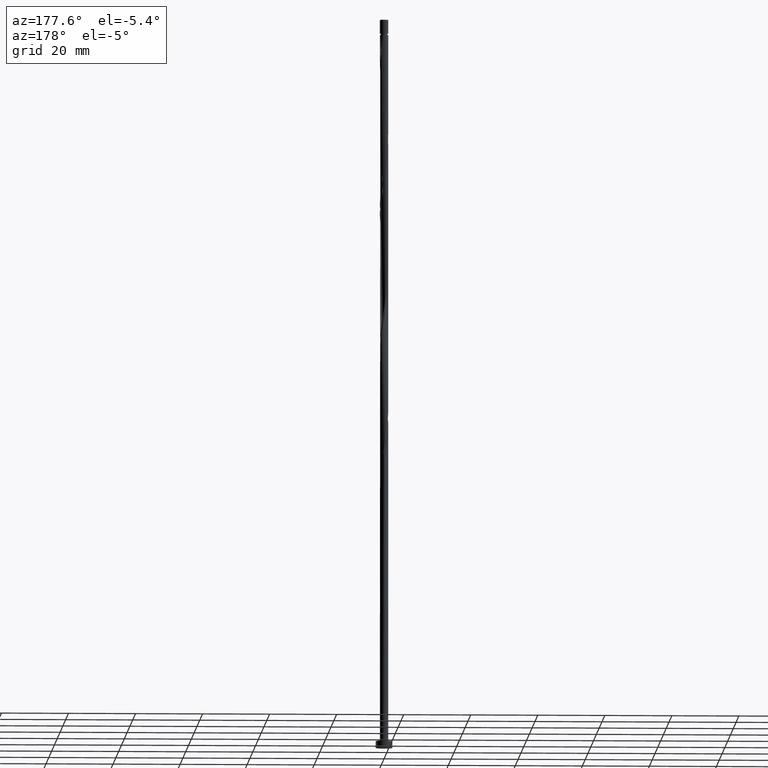
[diagram: clean part render]
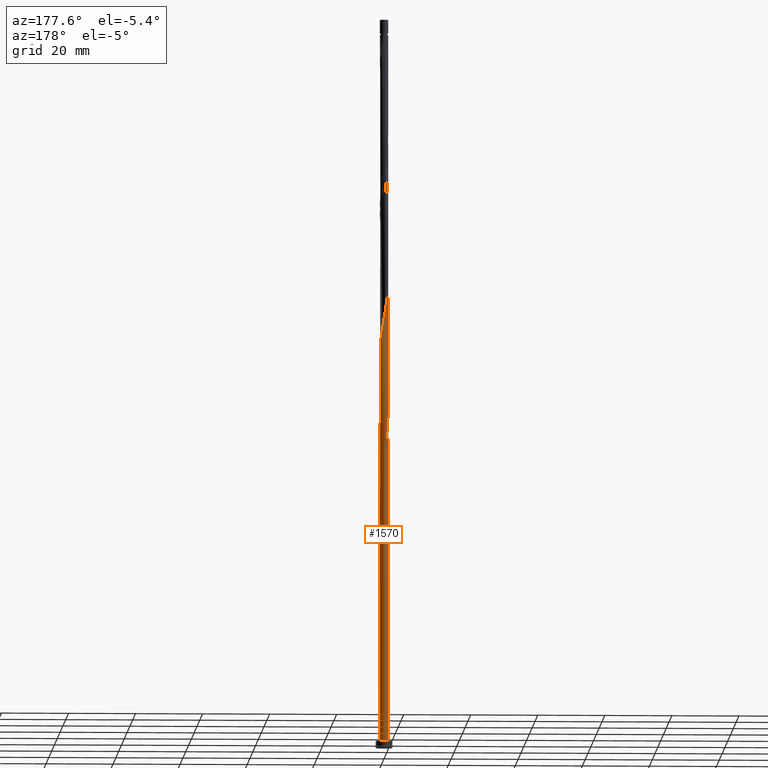
[diagram: same view with one face highlighted and labeled with its STEP entity id]
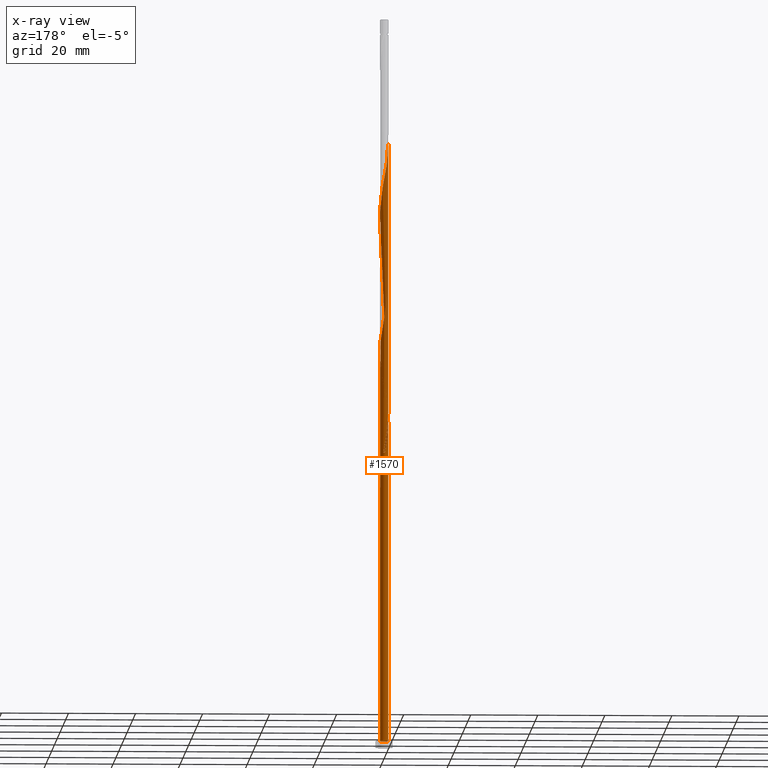
[diagram: x-ray of the same camera — body ghosted, the highlighted face saturated]
A machine part, auxiliary view. The second image highlights one B-rep face of the part: STEP entity #1570.
The next image is the same camera in x-ray: the body ghosted, the highlighted face saturated — about 0% of this face is hidden behind the body in this view.
In plain terms, the highlighted cylindrical surface (bore or boss wall) has radius 1.25 mm, axis along (-0, -0, -1).
Its self-contained STEP definition (entity closure, byte-faithful):
#2 = EDGE_CURVE ( 'NONE', #339, #1635, #493, .T. ) ;
#34 = CARTESIAN_POINT ( 'NONE',  ( 0.3974887887239255679, -1.194796663026321148, 109.9941828955851264 ) ) ;
#35 = CARTESIAN_POINT ( 'NONE',  ( -0.7895402911624437303, 0.9690852019462107281, 91.56469571609794400 ) ) ;
#45 = CARTESIAN_POINT ( 'NONE',  ( 1.057188045353650407, 0.6669733403677637895, 122.0134136648159000 ) ) ;
#46 = CARTESIAN_POINT ( 'NONE',  ( -1.250000000000001554, 0.1015705481713062297, 96.90861156439621027 ) ) ;
#49 = EDGE_CURVE ( 'NONE', #339, #1606, #1234, .T. ) ;
#64 = CARTESIAN_POINT ( 'NONE',  ( -1.250000000000000000, 0.000000000000000000, 217.9000000000000057 ) ) ;
#72 = ORIENTED_EDGE ( 'NONE', *, *, #770, .T. ) ;
#77 = CARTESIAN_POINT ( 'NONE',  ( -1.149459557334894910, 0.4911646628692586392, 136.4364905878928198 ) ) ;
#80 = ORIENTED_EDGE ( 'NONE', *, *, #251, .F. ) ;
#97 = EDGE_CURVE ( 'NONE', #1614, #1635, #1430, .T. ) ;
#105 = CARTESIAN_POINT ( 'NONE',  ( 0.2487468592766567677, 1.225000000000000089, 88.35956751096973960 ) ) ;
#128 = CARTESIAN_POINT ( 'NONE',  ( 0.7574990085993122957, 1.005848723770679909, 124.4172598186620320 ) ) ;
#145 = CARTESIAN_POINT ( 'NONE',  ( 0.6718720440307895947, -1.064952749933035570, 111.5967469981492144 ) ) ;
#179 = CARTESIAN_POINT ( 'NONE',  ( 0.000000000000000000, 0.000000000000000000, 217.9000000000000057 ) ) ;
#180 = VERTEX_POINT ( 'NONE', #503 ) ;
#182 = CARTESIAN_POINT ( 'NONE',  ( -1.250000000000002220, -1.581590499895011722E-15, 97.44831230174456493 ) ) ;
#191 = ORIENTED_EDGE ( 'NONE', *, *, #49, .F. ) ;
#199 = DIRECTION ( 'NONE',  ( 0.000000000000000000, 0.000000000000000000, 1.000000000000000000 ) ) ;
#208 = CARTESIAN_POINT ( 'NONE',  ( -1.209097744789173090, 0.3515950037838739273, 137.2377726391748354 ) ) ;
#216 = CARTESIAN_POINT ( 'NONE',  ( 1.258105753662064563, -0.05202226198902525772, 159.6736700750722378 ) ) ;
#218 = CARTESIAN_POINT ( 'NONE',  ( -1.233997229160461506, 0.2505738245793969754, 98.77623417763639679 ) ) ;
#219 = CARTESIAN_POINT ( 'NONE',  ( -0.7574990085993116296, -1.005848723770680575, 145.2505931519953890 ) ) ;
#226 = CARTESIAN_POINT ( 'NONE',  ( 0.3490314803447912562, 1.200282060904156012, 168.4877726391748638 ) ) ;
#229 = AXIS2_PLACEMENT_3D ( 'NONE', #855, #1244, #429 ) ;
#242 = CARTESIAN_POINT ( 'NONE',  ( -1.233997229160462838, -0.2505738245793970309, 140.4429008443030398 ) ) ;
#246 = CARTESIAN_POINT ( 'NONE',  ( -1.057188045353650407, -0.6669733403677635675, 101.1800803314825856 ) ) ;
#251 = EDGE_CURVE ( 'NONE', #1606, #1558, #937, .T. ) ;
#258 = CARTESIAN_POINT ( 'NONE',  ( 0.2487468592766563791, -1.225000000000001421, 150.8595675109697538 ) ) ;
#261 = CARTESIAN_POINT ( 'NONE',  ( 0.5346804163773575258, -1.129874706479678581, 110.7954649468671846 ) ) ;
#269 = CARTESIAN_POINT ( 'NONE',  ( 0.1000049298293866490, -1.255203336973681472, 150.0582854596876814 ) ) ;
#273 = CARTESIAN_POINT ( 'NONE',  ( 0.05164296112716043607, 1.248932746214151956, 128.4236700750722662 ) ) ;
#303 = CARTESIAN_POINT ( 'NONE',  ( -1.209097744789173090, 0.3515950037838739273, 178.9044393058415494 ) ) ;
#317 = VECTOR ( 'NONE', #544, 1000.000000000000000 ) ;
#320 = VERTEX_POINT ( 'NONE', #1683 ) ;
#330 = CARTESIAN_POINT ( 'NONE',  ( -1.233997229160462838, -0.2505738245793970309, 98.77623417763641100 ) ) ;
#336 = CARTESIAN_POINT ( 'NONE',  ( -0.6718720440307900388, 1.064952749933035570, 132.4300803314825998 ) ) ;
#337 = DIRECTION ( 'NONE',  ( -0.000000000000000000, -0.000000000000000000, -1.000000000000000000 ) ) ;
#339 = VERTEX_POINT ( 'NONE', #593 ) ;
#343 = CARTESIAN_POINT ( 'NONE',  ( -1.233601749225618827, 0.2018086328864497903, 96.37238802379025060 ) ) ;
#350 = CARTESIAN_POINT ( 'NONE',  ( 0.9985149540873564655, -0.7519759879570147021, 155.6672598186620746 ) ) ;
#352 = CARTESIAN_POINT ( 'NONE',  ( -0.8668509141045661615, -0.9005939666220745821, 144.4493111007133166 ) ) ;
#359 = CARTESIAN_POINT ( 'NONE',  ( 1.057188045353650407, 0.6669733403677637895, 163.6800803314826283 ) ) ;
#365 = CARTESIAN_POINT ( 'NONE',  ( -0.5346804163773578589, 1.129874706479678581, 173.2954649468672130 ) ) ;
#367 = CARTESIAN_POINT ( 'NONE',  ( -0.05164296112715906911, 1.248932746214150402, 89.96213161353385601 ) ) ;
#373 = CARTESIAN_POINT ( 'NONE',  ( -0.6718720440307900388, 1.064952749933035570, 174.0967469981491433 ) ) ;
#386 = CARTESIAN_POINT ( 'NONE',  ( -0.9762028196098206934, -0.7953392094734689222, 143.6480290494312726 ) ) ;
#394 = VECTOR ( 'NONE', #337, 1000.000000000000000 ) ;
#400 = CARTESIAN_POINT ( 'NONE',  ( -0.2032908520837052591, 1.242662155454620887, 90.76341366481587158 ) ) ;
#407 = CARTESIAN_POINT ( 'NONE',  ( -1.233601749225618827, 0.2018086328864497903, 179.7057213571236218 ) ) ;
#414 = CARTESIAN_POINT ( 'NONE',  ( -0.1000049298293865518, 1.255203336973681694, 129.2249521263543386 ) ) ;
#429 = DIRECTION ( 'NONE',  ( 1.000000000000000000, 0.000000000000000000, 0.000000000000000000 ) ) ;
#433 = CARTESIAN_POINT ( 'NONE',  ( -1.186085250128970037, 0.3945906479207276774, 97.97495212635438122 ) ) ;
#441 = CARTESIAN_POINT ( 'NONE',  ( -0.3974887887239259565, 1.194796663026321148, 130.8275162289184834 ) ) ;
#443 = CARTESIAN_POINT ( 'NONE',  ( -0.5346804163773578589, 1.129874706479678581, 89.96213161353384180 ) ) ;
#473 = CARTESIAN_POINT ( 'NONE',  ( -1.089821369880616508, 0.6307343219546431845, 135.6352085366107474 ) ) ;
#482 = CARTESIAN_POINT ( 'NONE',  ( -0.3974887887239259565, 1.194796663026321148, 89.16084956225178360 ) ) ;
#483 = CARTESIAN_POINT ( 'NONE',  ( -1.233601749225618827, 0.2018086328864497903, 138.0390546904569078 ) ) ;
#493 = CIRCLE ( 'NONE', #1009, 1.250000000000000000 ) ;
#503 = CARTESIAN_POINT ( 'NONE',  ( 1.250000000000000000, 0.000000000000000000, 2.000000000000000000 ) ) ;
#511 = CARTESIAN_POINT ( 'NONE',  ( -0.3974887887239259565, 1.194796663026321148, 172.4941828955851690 ) ) ;
#513 = CARTESIAN_POINT ( 'NONE',  ( -0.6261355586025921793, 1.081875345062184302, 93.16725981866207462 ) ) ;
#524 = CARTESIAN_POINT ( 'NONE',  ( -1.138173271097479899, -0.5386074712620584348, 100.3787982802004990 ) ) ;
#527 = CARTESIAN_POINT ( 'NONE',  ( 1.246051491411264145, 0.09927578129518525862, 160.4749521263543670 ) ) ;
#528 = CARTESIAN_POINT ( 'NONE',  ( -1.138173271097479899, -0.5386074712620584348, 142.0454649468672130 ) ) ;
#544 = DIRECTION ( 'NONE',  ( -0.000000000000000000, -0.000000000000000000, -1.000000000000000000 ) ) ;
#547 = AXIS2_PLACEMENT_3D ( 'NONE', #868, #199, #1554 ) ;
#550 = CARTESIAN_POINT ( 'NONE',  ( -0.4947721086058752826, -1.157901966353690026, 146.8531572545594770 ) ) ;
#561 = CARTESIAN_POINT ( 'NONE',  ( -0.2032908520837060640, -1.242662155454622219, 106.7890546904569220 ) ) ;
#571 = CARTESIAN_POINT ( 'NONE',  ( 1.149459557334894910, -0.4911646628692586392, 115.6031572545594770 ) ) ;
#572 = CARTESIAN_POINT ( 'NONE',  ( -1.209097744789173090, 0.3515950037838739273, 95.57110597250819239 ) ) ;
#593 = CARTESIAN_POINT ( 'NONE',  ( -0.2487468592766562681, 1.225000000000001643, 88.35956751096973960 ) ) ;
#608 = CARTESIAN_POINT ( 'NONE',  ( -0.9072085382940975329, 0.8732176539593857756, 134.0326444340466594 ) ) ;
#611 = EDGE_LOOP ( 'NONE', ( #1302, #80, #1247, #1176, #72, #622, #191, #1259, #922 ) ) ;
#622 = ORIENTED_EDGE ( 'NONE', *, *, #645, .F. ) ;
#627 = CARTESIAN_POINT ( 'NONE',  ( 1.089821369880616286, -0.6307343219546435176, 156.4685418699441186 ) ) ;
#637 = CARTESIAN_POINT ( 'NONE',  ( -0.1000049298293865518, 1.255203336973681694, 170.8916187930209958 ) ) ;
#645 = EDGE_CURVE ( 'NONE', #1606, #320, #1307, .T. ) ;
#649 = CARTESIAN_POINT ( 'NONE',  ( 0.2487468592766567677, 1.225000000000000089, 88.35956751096973960 ) ) ;
#664 = CARTESIAN_POINT ( 'NONE',  ( -0.7574990085993116296, -1.005848723770680575, 103.5839264853286892 ) ) ;
#667 = EDGE_CURVE ( 'NONE', #320, #180, #846, .T. ) ;
#737 = CARTESIAN_POINT ( 'NONE',  ( -0.5346804163773578589, 1.129874706479678581, 131.6287982802005274 ) ) ;
#746 = LINE ( 'NONE', #64, #317 ) ;
#761 = CARTESIAN_POINT ( 'NONE',  ( 0.2032908520837062305, 1.242662155454622219, 169.2890546904569078 ) ) ;
#770 = EDGE_CURVE ( 'NONE', #180, #320, #1437, .T. ) ;
#774 = CARTESIAN_POINT ( 'NONE',  ( -0.3490314803447907566, -1.200282060904156012, 105.9877726391748638 ) ) ;
#781 = CARTESIAN_POINT ( 'NONE',  ( -1.250000000000002220, -1.581590499895011722E-15, 97.44831230174456493 ) ) ;
#794 = CARTESIAN_POINT ( 'NONE',  ( -0.8668509141045661615, -0.9005939666220745821, 102.7826444340466452 ) ) ;
#797 = CARTESIAN_POINT ( 'NONE',  ( 0.6718720440307895947, -1.064952749933035570, 153.2634136648158574 ) ) ;
#800 = CARTESIAN_POINT ( 'NONE',  ( 0.9072085382940971998, -0.8732176539593857756, 113.1993111007133166 ) ) ;
#840 = CARTESIAN_POINT ( 'NONE',  ( -1.149459557334894910, 0.4911646628692586392, 178.1031572545594770 ) ) ;
#841 = EDGE_CURVE ( 'NONE', #1558, #1614, #746, .T. ) ;
#846 = CIRCLE ( 'NONE', #547, 1.250000000000000000 ) ;
#855 = CARTESIAN_POINT ( 'NONE',  ( 0.000000000000000000, 0.000000000000000000, 2.000000000000000000 ) ) ;
#861 = CARTESIAN_POINT ( 'NONE',  ( -1.186085250128971591, -0.3945906479207275663, 99.57751622891842658 ) ) ;
#866 = CARTESIAN_POINT ( 'NONE',  ( -1.057188045353648853, 0.6669733403677633454, 96.37238802379027902 ) ) ;
#868 = CARTESIAN_POINT ( 'NONE',  ( 0.000000000000000000, 0.000000000000000000, 2.000000000000000000 ) ) ;
#878 = CARTESIAN_POINT ( 'NONE',  ( -0.2487468592766562125, 1.225000000000001421, 130.0262341776364110 ) ) ;
#883 = CARTESIAN_POINT ( 'NONE',  ( 1.149459557334894910, -0.4911646628692586392, 157.2698239212261626 ) ) ;
#885 = CARTESIAN_POINT ( 'NONE',  ( -1.250000000000000666, 0.04971641292095841519, 99.83998513789535423 ) ) ;
#892 = CARTESIAN_POINT ( 'NONE',  ( 0.6261355586025936226, 1.081875345062185190, 166.8852085366108042 ) ) ;
#906 = CARTESIAN_POINT ( 'NONE',  ( -0.7895402911624437303, 0.9690852019462107281, 174.8980290494312726 ) ) ;
#916 = CARTESIAN_POINT ( 'NONE',  ( 0.1000049298293872735, 1.255203336973680139, 89.16084956225179781 ) ) ;
#922 = ORIENTED_EDGE ( 'NONE', *, *, #97, .F. ) ;
#930 = CARTESIAN_POINT ( 'NONE',  ( 0.4947721086058753381, 1.157901966353690026, 126.0198239212261484 ) ) ;
#937 =( BOUNDED_CURVE ( )  B_SPLINE_CURVE ( 2, ( #182, #1121, #990, #330, #861, #524, #246, #1587, #794, #664, #1472, #1294, #774, #561, #942, #1496, #1485, #34, #261, #145, #1365, #800, #1079, #1355, #571, #1209, #1069, #1092, #1596, #1633, #1503, #1235, #45, #1613, #1335, #128, #1051, #930, #1220, #1479, #273, #414, #878, #441, #737, #336, #1266, #608, #1276, #473, #77, #208, #483, #1547, #969, #242, #1011, #528, #1582, #386, #352, #219, #1048, #550, #1592, #1076, #1216, #269, #258, #1628, #1087, #797, #1332, #1600, #350, #627, #883, #1017, #1178, #216, #527, #1288, #1574, #1154, #359, #1170, #1562, #1304, #892, #1431, #226, #761, #1298, #637, #1697, #511, #365, #373, #906, #1448, #955, #1212, #840, #303, #407, #946, #1401 ),
 .UNSPECIFIED., .F., .T. ) 
 B_SPLINE_CURVE_WITH_KNOTS ( ( 3, 2, 2, 2, 2, 2, 2, 2, 2, 2, 2, 2, 2, 2, 2, 2, 2, 2, 2, 2, 2, 2, 2, 2, 2, 2, 2, 2, 2, 2, 2, 2, 2, 2, 2, 2, 2, 2, 2, 2, 2, 2, 2, 2, 2, 2, 2, 2, 2, 2, 2, 2, 2, 3 ),
 ( 0.05452716259738330656, 0.05769230769230770939, 0.06730769230769229061, 0.07692307692307687184, 0.08653846153846156408, 0.09615384615384614531, 0.1057692307692307265, 0.1153846153846154188, 0.1250000000000000000, 0.1346153846153845812, 0.1442307692307692735, 0.1538461538461538547, 0.1634615384615384359, 0.1730769230769231282, 0.1826923076923077094, 0.1923076923076922906, 0.2019230769230768718, 0.2115384615384615641, 0.2211538461538461453, 0.2307692307692307265, 0.2403846153846154188, 0.2500000000000000000, 0.2596153846153845812, 0.2692307692307692735, 0.2788461538461538547, 0.2884615384615384359, 0.2980769230769231282, 0.3076923076923077094, 0.3173076923076922906, 0.3269230769230768718, 0.3365384615384615641, 0.3461538461538461453, 0.3557692307692307265, 0.3653846153846154188, 0.3750000000000000000, 0.3846153846153845812, 0.3942307692307692735, 0.4038461538461538547, 0.4134615384615384359, 0.4230769230769231282, 0.4326923076923077094, 0.4423076923076922906, 0.4519230769230768718, 0.4615384615384615641, 0.4711538461538461453, 0.4807692307692307265, 0.4903846153846154188, 0.5000000000000000000, 0.5096153846153845812, 0.5192307692307691624, 0.5288461538461538547, 0.5384615384615384359, 0.5480769230769231282, 0.5545271625973834384 ),
 .UNSPECIFIED. ) 
 CURVE ( )  GEOMETRIC_REPRESENTATION_ITEM ( )  RATIONAL_B_SPLINE_CURVE ( ( 0.9061636035683147128, 0.9069090390691034731, 0.9090909090909601309, 0.9024626128164634498, 0.9090909090909601309, 0.9024626128164634498, 0.9090909090909601309, 0.9024626128164634498, 0.9090909090909601309, 0.9024626128164634498, 0.9090909090909601309, 0.9024626128164634498, 0.9090909090909601309, 0.9024626128164634498, 0.9090909090909601309, 0.9024626128164634498, 0.9090909090909601309, 0.9024626128164634498, 0.9090909090909601309, 0.9024626128164634498, 0.9090909090909601309, 0.9024626128164634498, 0.9090909090909601309, 0.9024626128164634498, 0.9090909090909601309, 0.9024626128164634498, 0.9090909090909601309, 0.9024626128164634498, 0.9090909090909601309, 0.9024626128164634498, 0.9090909090909601309, 0.9024626128164634498, 0.9090909090909601309, 0.9024626128164634498, 0.9090909090909601309, 0.9024626128164634498, 0.9090909090909601309, 0.9024626128164634498, 0.9090909090909601309, 0.9024626128164634498, 0.9090909090909601309, 0.9024626128164634498, 0.9090909090909601309, 0.9024626128164634498, 0.9090909090909601309, 0.9024626128164634498, 0.9090909090909601309, 0.9024626128164634498, 0.9090909090909601309, 0.9024626128164634498, 0.9090909090909601309, 0.9024626128164634498, 0.9090909090909601309, 0.9024626128164634498, 0.9090909090909601309, 0.9024626128164634498, 0.9090909090909601309, 0.9024626128164634498, 0.9090909090909601309, 0.9024626128164634498, 0.9090909090909601309, 0.9024626128164634498, 0.9090909090909601309, 0.9024626128164634498, 0.9090909090909601309, 0.9024626128164634498, 0.9090909090909601309, 0.9024626128164634498, 0.9090909090909601309, 0.9024626128164634498, 0.9090909090909601309, 0.9024626128164634498, 0.9090909090909601309, 0.9024626128164634498, 0.9090909090909601309, 0.9024626128164634498, 0.9090909090909601309, 0.9024626128164634498, 0.9090909090909601309, 0.9024626128164634498, 0.9090909090909601309, 0.9024626128164634498, 0.9090909090909601309, 0.9024626128164634498, 0.9090909090909601309, 0.9024626128164634498, 0.9090909090909601309, 0.9024626128164634498, 0.9090909090909601309, 0.9024626128164634498, 0.9090909090909601309, 0.9024626128164634498, 0.9090909090909601309, 0.9024626128164634498, 0.9090909090909601309, 0.9024626128164634498, 0.9090909090909601309, 0.9024626128164634498, 0.9090909090909601309, 0.9024626128164634498, 0.9090909090909601309, 0.9024626128164634498, 0.9090909090909601309, 0.9024626128164634498, 0.9090909090909601309, 0.9046444828383199965, 0.9061636035683149348 ) ) 
 REPRESENTATION_ITEM ( '' )  );
#942 = CARTESIAN_POINT ( 'NONE',  ( -0.05164296112715973525, -1.248932746214151956, 107.5903367417389944 ) ) ;
#946 = CARTESIAN_POINT ( 'NONE',  ( -1.250000000000002220, 0.1015705481713041619, 180.2419448977295815 ) ) ;
#955 = CARTESIAN_POINT ( 'NONE',  ( -0.9985149540873566876, 0.7519759879570144800, 176.5005931519953606 ) ) ;
#969 = CARTESIAN_POINT ( 'NONE',  ( -1.246051491411264145, -0.09927578129518567496, 139.6416187930209958 ) ) ;
#970 = CARTESIAN_POINT ( 'NONE',  ( -1.246051491411262369, 0.09927578129518611905, 99.57751622891846921 ) ) ;
#987 = CARTESIAN_POINT ( 'NONE',  ( -1.250000000000000666, -1.491854868695303230E-15, 100.1041560535283281 ) ) ;
#990 = CARTESIAN_POINT ( 'NONE',  ( -1.246051491411264145, -0.09927578129518567496, 97.97495212635438122 ) ) ;
#1009 = AXIS2_PLACEMENT_3D ( 'NONE', #1711, #1042, #1366 ) ;
#1011 = CARTESIAN_POINT ( 'NONE',  ( -1.186085250128971591, -0.3945906479207275663, 141.2441828955851690 ) ) ;
#1017 = CARTESIAN_POINT ( 'NONE',  ( 1.209097744789172424, -0.3515950037838746489, 158.0711059725081782 ) ) ;
#1018 = CARTESIAN_POINT ( 'NONE',  ( -0.6718720440307900388, 1.064952749933035570, 90.76341366481588580 ) ) ;
#1029 = CARTESIAN_POINT ( 'NONE',  ( -0.4947721086058746165, 1.157901966353689138, 92.36597776738000221 ) ) ;
#1042 = DIRECTION ( 'NONE',  ( 0.000000000000000000, -0.000000000000000000, -1.000000000000000000 ) ) ;
#1048 = CARTESIAN_POINT ( 'NONE',  ( -0.6261355586025935116, -1.081875345062185412, 146.0518752032774046 ) ) ;
#1051 = CARTESIAN_POINT ( 'NONE',  ( 0.6261355586025936226, 1.081875345062185190, 125.2185418699440760 ) ) ;
#1069 = CARTESIAN_POINT ( 'NONE',  ( 1.233601749225618827, -0.2018086328864499290, 117.2057213571236076 ) ) ;
#1076 = CARTESIAN_POINT ( 'NONE',  ( -0.2032908520837060640, -1.242662155454622219, 148.4557213571235650 ) ) ;
#1079 = CARTESIAN_POINT ( 'NONE',  ( 0.9985149540873564655, -0.7519759879570147021, 114.0005931519954032 ) ) ;
#1087 = CARTESIAN_POINT ( 'NONE',  ( 0.5346804163773575258, -1.129874706479678581, 152.4621316135338418 ) ) ;
#1092 = CARTESIAN_POINT ( 'NONE',  ( 1.258105753662064563, -0.05202226198902525772, 118.0070034084056374 ) ) ;
#1121 = CARTESIAN_POINT ( 'NONE',  ( -1.250000000000002220, -0.04971641292096119769, 97.71248321737751041 ) ) ;
#1129 = CARTESIAN_POINT ( 'NONE',  ( -1.250000000000001998, -4.225052635653340235E-16, 180.7816456350778651 ) ) ;
#1154 = CARTESIAN_POINT ( 'NONE',  ( 1.138173271097479899, 0.5386074712620579907, 162.8787982802005558 ) ) ;
#1157 = CARTESIAN_POINT ( 'NONE',  ( -1.149459557334894910, 0.4911646628692586392, 94.76982392122616261 ) ) ;
#1170 = CARTESIAN_POINT ( 'NONE',  ( 0.9762028196098208044, 0.7953392094734684781, 164.4813623827646154 ) ) ;
#1174 = CARTESIAN_POINT ( 'NONE',  ( -1.250000000000000000, 0.000000000000000000, 217.9000000000000057 ) ) ;
#1176 = ORIENTED_EDGE ( 'NONE', *, *, #667, .T. ) ;
#1178 = CARTESIAN_POINT ( 'NONE',  ( 1.233601749225618827, -0.2018086328864499290, 158.8723880237902506 ) ) ;
#1209 = CARTESIAN_POINT ( 'NONE',  ( 1.209097744789172424, -0.3515950037838746489, 116.4044393058415494 ) ) ;
#1212 = CARTESIAN_POINT ( 'NONE',  ( -1.089821369880616508, 0.6307343219546431845, 177.3018752032774330 ) ) ;
#1216 = CARTESIAN_POINT ( 'NONE',  ( -0.05164296112715973525, -1.248932746214151956, 149.2570034084056090 ) ) ;
#1220 = CARTESIAN_POINT ( 'NONE',  ( 0.3490314803447912562, 1.200282060904156012, 126.8211059725082066 ) ) ;
#1234 =( BOUNDED_CURVE ( )  B_SPLINE_CURVE ( 2, ( #1289, #482, #443, #1018, #35, #1375, #1504, #1237, #1157, #572, #343, #46, #1564 ),
 .UNSPECIFIED., .F., .T. ) 
 B_SPLINE_CURVE_WITH_KNOTS ( ( 3, 2, 2, 2, 2, 2, 3 ),
 ( 0.000000000000000000, 0.009615384615384582959, 0.01923076923076927347, 0.02884615384615385469, 0.03846153846153842898, 0.04807692307692312816, 0.05452716259738330656 ),
 .UNSPECIFIED. ) 
 CURVE ( )  GEOMETRIC_REPRESENTATION_ITEM ( )  RATIONAL_B_SPLINE_CURVE ( ( 0.9090909090909601309, 0.9024626128164634498, 0.9090909090909601309, 0.9024626128164634498, 0.9090909090909601309, 0.9024626128164634498, 0.9090909090909601309, 0.9024626128164634498, 0.9090909090909601309, 0.9024626128164634498, 0.9090909090909601309, 0.9046444828383199965, 0.9061636035683147128 ) ) 
 REPRESENTATION_ITEM ( '' )  );
#1235 = CARTESIAN_POINT ( 'NONE',  ( 1.138173271097479899, 0.5386074712620579907, 121.2121316135338560 ) ) ;
#1237 = CARTESIAN_POINT ( 'NONE',  ( -1.089821369880616508, 0.6307343219546431845, 93.96854186994410441 ) ) ;
#1244 = DIRECTION ( 'NONE',  ( 0.000000000000000000, 0.000000000000000000, 1.000000000000000000 ) ) ;
#1247 = ORIENTED_EDGE ( 'NONE', *, *, #645, .T. ) ;
#1259 = ORIENTED_EDGE ( 'NONE', *, *, #2, .T. ) ;
#1266 = CARTESIAN_POINT ( 'NONE',  ( -0.7895402911624437303, 0.9690852019462107281, 133.2313623827646154 ) ) ;
#1276 = CARTESIAN_POINT ( 'NONE',  ( -0.9985149540873566876, 0.7519759879570144800, 134.8339264853287034 ) ) ;
#1288 = CARTESIAN_POINT ( 'NONE',  ( 1.233997229160462838, 0.2505738245793968089, 161.2762341776364110 ) ) ;
#1289 = CARTESIAN_POINT ( 'NONE',  ( -0.2487468592766562681, 1.225000000000001643, 88.35956751096975381 ) ) ;
#1294 = CARTESIAN_POINT ( 'NONE',  ( -0.4947721086058752826, -1.157901966353690026, 105.1864905878928056 ) ) ;
#1298 = CARTESIAN_POINT ( 'NONE',  ( 0.05164296112716043607, 1.248932746214151956, 170.0903367417389802 ) ) ;
#1302 = ORIENTED_EDGE ( 'NONE', *, *, #841, .F. ) ;
#1304 = CARTESIAN_POINT ( 'NONE',  ( 0.7574990085993122957, 1.005848723770679909, 166.0839264853286465 ) ) ;
#1307 = LINE ( 'NONE', #1174, #394 ) ;
#1332 = CARTESIAN_POINT ( 'NONE',  ( 0.7895402911624437303, -0.9690852019462107281, 154.0646957160979298 ) ) ;
#1335 = CARTESIAN_POINT ( 'NONE',  ( 0.8668509141045661615, 0.9005939666220745821, 123.6159777673800164 ) ) ;
#1355 = CARTESIAN_POINT ( 'NONE',  ( 1.089821369880616286, -0.6307343219546435176, 114.8018752032774188 ) ) ;
#1365 = CARTESIAN_POINT ( 'NONE',  ( 0.7895402911624437303, -0.9690852019462107281, 112.3980290494312726 ) ) ;
#1366 = DIRECTION ( 'NONE',  ( -1.000000000000000000, 0.000000000000000000, 0.000000000000000000 ) ) ;
#1375 = CARTESIAN_POINT ( 'NONE',  ( -0.9072085382940975329, 0.8732176539593857756, 92.36597776737998799 ) ) ;
#1401 = CARTESIAN_POINT ( 'NONE',  ( -1.250000000000001998, -4.225052635653340235E-16, 180.7816456350778651 ) ) ;
#1405 = DIRECTION ( 'NONE',  ( -0.000000000000000000, -0.000000000000000000, -1.000000000000000000 ) ) ;
#1408 = CARTESIAN_POINT ( 'NONE',  ( -0.9762028196098191390, 0.7953392094734682560, 95.57110597250819239 ) ) ;
#1430 =( BOUNDED_CURVE ( )  B_SPLINE_CURVE ( 2, ( #1642, #885, #970, #218, #433, #1513, #866, #1408, #1707, #1433, #513, #1029, #1591, #400, #367, #916, #105 ),
 .UNSPECIFIED., .F., .T. ) 
 B_SPLINE_CURVE_WITH_KNOTS ( ( 3, 2, 2, 2, 2, 2, 2, 2, 3 ),
 ( 0.9295271625973831053, 0.9326923076923077094, 0.9423076923076922906, 0.9519230769230768718, 0.9615384615384615641, 0.9711538461538461453, 0.9807692307692307265, 0.9903846153846154188, 1.000000000000000000 ),
 .UNSPECIFIED. ) 
 CURVE ( )  GEOMETRIC_REPRESENTATION_ITEM ( )  RATIONAL_B_SPLINE_CURVE ( ( 0.9061636035683097168, 0.9069090390690983661, 0.9090909090909551349, 0.9024626128164584538, 0.9090909090909551349, 0.9024626128164584538, 0.9090909090909551349, 0.9024626128164584538, 0.9090909090909551349, 0.9024626128164584538, 0.9090909090909551349, 0.9024626128164584538, 0.9090909090909551349, 0.9024626128164584538, 0.9090909090909551349, 0.9024626128164584538, 0.9090909090909551349 ) ) 
 REPRESENTATION_ITEM ( '' )  );
#1431 = CARTESIAN_POINT ( 'NONE',  ( 0.4947721086058753381, 1.157901966353690026, 167.6864905878927914 ) ) ;
#1433 = CARTESIAN_POINT ( 'NONE',  ( -0.7574990085993101863, 1.005848723770679909, 93.96854186994411862 ) ) ;
#1437 = CIRCLE ( 'NONE', #229, 1.250000000000000000 ) ;
#1448 = CARTESIAN_POINT ( 'NONE',  ( -0.9072085382940975329, 0.8732176539593857756, 175.6993111007132597 ) ) ;
#1472 = CARTESIAN_POINT ( 'NONE',  ( -0.6261355586025935116, -1.081875345062185412, 104.3852085366107758 ) ) ;
#1479 = CARTESIAN_POINT ( 'NONE',  ( 0.2032908520837062305, 1.242662155454622219, 127.6223880237902506 ) ) ;
#1485 = CARTESIAN_POINT ( 'NONE',  ( 0.2487468592766563791, -1.225000000000001421, 109.1929008443030682 ) ) ;
#1496 = CARTESIAN_POINT ( 'NONE',  ( 0.1000049298293866490, -1.255203336973681472, 108.3916187930210242 ) ) ;
#1503 = CARTESIAN_POINT ( 'NONE',  ( 1.186085250128971591, 0.3945906479207268447, 120.4108495622518120 ) ) ;
#1504 = CARTESIAN_POINT ( 'NONE',  ( -0.9985149540873566876, 0.7519759879570144800, 93.16725981866204620 ) ) ;
#1513 = CARTESIAN_POINT ( 'NONE',  ( -1.138173271097478345, 0.5386074712620577687, 97.17367007507230880 ) ) ;
#1522 = AXIS2_PLACEMENT_3D ( 'NONE', #179, #1405, #1576 ) ;
#1525 = FACE_OUTER_BOUND ( 'NONE', #611, .T. ) ;
#1547 = CARTESIAN_POINT ( 'NONE',  ( -1.258105753662064563, 0.05202226198902536181, 138.8403367417389802 ) ) ;
#1554 = DIRECTION ( 'NONE',  ( 1.000000000000000000, 0.000000000000000000, 0.000000000000000000 ) ) ;
#1558 = VERTEX_POINT ( 'NONE', #1129 ) ;
#1562 = CARTESIAN_POINT ( 'NONE',  ( 0.8668509141045661615, 0.9005939666220745821, 165.2826444340466594 ) ) ;
#1564 = CARTESIAN_POINT ( 'NONE',  ( -1.250000000000002220, -1.581590499895011722E-15, 97.44831230174456493 ) ) ;
#1570 = ADVANCED_FACE ( 'NONE', ( #1525 ), #1663, .T. ) ;
#1574 = CARTESIAN_POINT ( 'NONE',  ( 1.186085250128971591, 0.3945906479207268447, 162.0775162289184834 ) ) ;
#1576 = DIRECTION ( 'NONE',  ( -1.000000000000000000, 0.000000000000000000, 0.000000000000000000 ) ) ;
#1582 = CARTESIAN_POINT ( 'NONE',  ( -1.057188045353650407, -0.6669733403677635675, 142.8467469981492286 ) ) ;
#1587 = CARTESIAN_POINT ( 'NONE',  ( -0.9762028196098206934, -0.7953392094734689222, 101.9813623827646296 ) ) ;
#1591 = CARTESIAN_POINT ( 'NONE',  ( -0.3490314803447899794, 1.200282060904154680, 91.56469571609797242 ) ) ;
#1592 = CARTESIAN_POINT ( 'NONE',  ( -0.3490314803447907566, -1.200282060904156012, 147.6544393058415494 ) ) ;
#1596 = CARTESIAN_POINT ( 'NONE',  ( 1.246051491411264145, 0.09927578129518525862, 118.8082854596876814 ) ) ;
#1600 = CARTESIAN_POINT ( 'NONE',  ( 0.9072085382940971998, -0.8732176539593857756, 154.8659777673799738 ) ) ;
#1606 = VERTEX_POINT ( 'NONE', #781 ) ;
#1613 = CARTESIAN_POINT ( 'NONE',  ( 0.9762028196098208044, 0.7953392094734684781, 122.8146957160979582 ) ) ;
#1614 = VERTEX_POINT ( 'NONE', #987 ) ;
#1628 = CARTESIAN_POINT ( 'NONE',  ( 0.3974887887239255679, -1.194796663026321148, 151.6608495622517978 ) ) ;
#1633 = CARTESIAN_POINT ( 'NONE',  ( 1.233997229160462838, 0.2505738245793968089, 119.6095675109697254 ) ) ;
#1635 = VERTEX_POINT ( 'NONE', #649 ) ;
#1642 = CARTESIAN_POINT ( 'NONE',  ( -1.250000000000000666, -1.491854868695303230E-15, 100.1041560535283423 ) ) ;
#1663 = CYLINDRICAL_SURFACE ( 'NONE', #1522, 1.250000000000000000 ) ;
#1683 = CARTESIAN_POINT ( 'NONE',  ( -1.250000000000000000, 0.000000000000000000, 2.000000000000000000 ) ) ;
#1697 = CARTESIAN_POINT ( 'NONE',  ( -0.2487468592766562125, 1.225000000000001421, 171.6929008443030966 ) ) ;
#1707 = CARTESIAN_POINT ( 'NONE',  ( -0.8668509141045649402, 0.9005939666220741380, 94.76982392122617682 ) ) ;
#1711 = CARTESIAN_POINT ( 'NONE',  ( 0.000000000000000000, 0.000000000000000000, 88.35956751096973960 ) ) ;